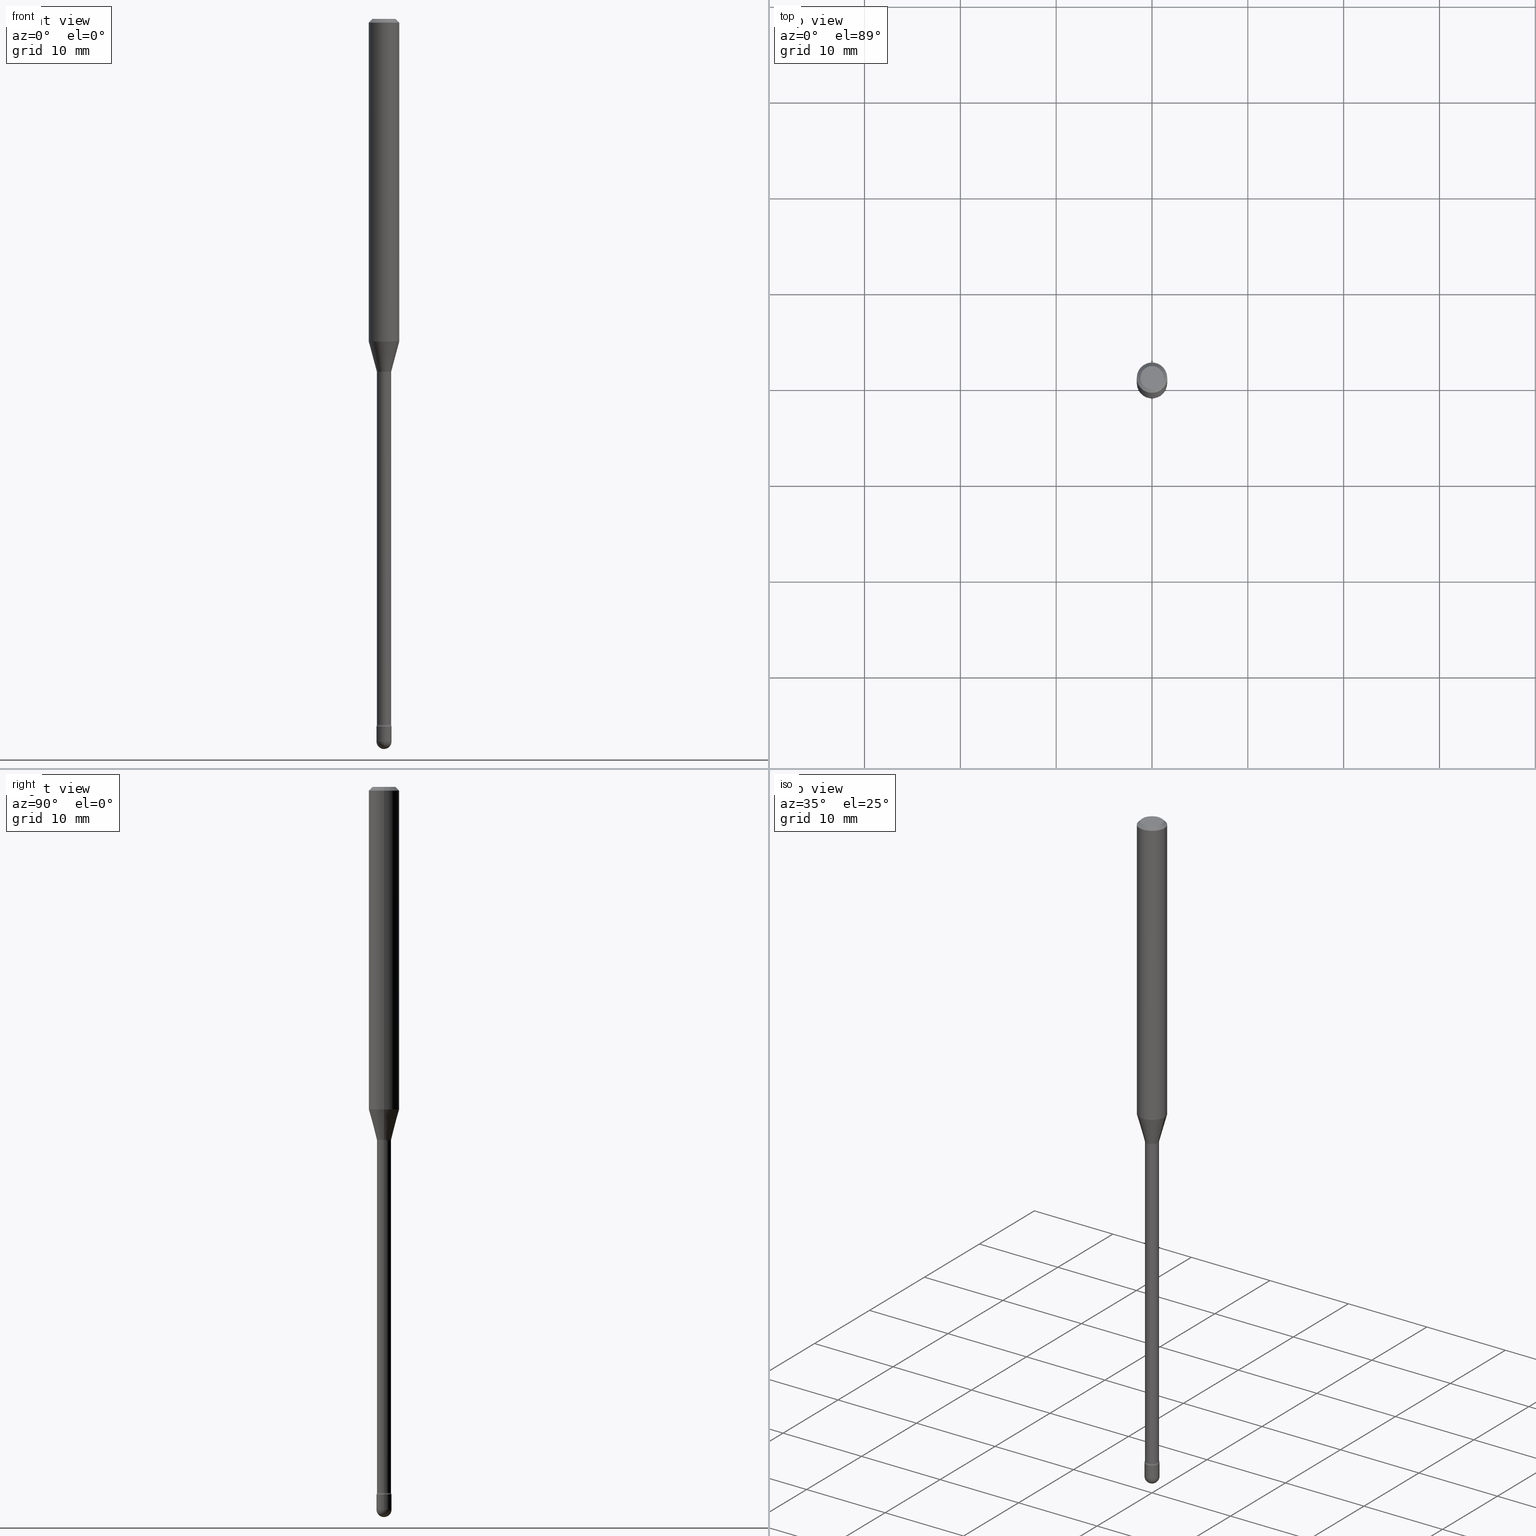
[diagram: canonical four-view strip — front | top / right | iso, engineering-drawing reading convention]
A machine part, canonical four-view strip (front | top / right | iso — engineering-drawing reading convention). The complete STEP part file that produces these views, byte-faithful:
ISO-10303-21;
HEADER;
FILE_DESCRIPTION (( 'STEP AP203' ),
    '1' );
FILE_NAME ('09500.STEP',
    '2024-04-09T23:55:29',
    ( '' ),
    ( '' ),
    'SwSTEP 2.0',
    'SolidWorks 2023',
    '' );
FILE_SCHEMA (( 'CONFIG_CONTROL_DESIGN' ));
ENDSEC;

DATA;
#1 = LINE ( 'NONE', #16, #440 ) ;
#2 = CARTESIAN_POINT ( 'NONE',  ( 2.023552857353652888E-45, -2.889097183224559242E-31, -8.274703207154537794E-17 ) ) ;
#3 = EDGE_LOOP ( 'NONE', ( #71, #497, #276, #362 ) ) ;
#4 = ORIENTED_EDGE ( 'NONE', *, *, #175, .F. ) ;
#5 = DIRECTION ( 'NONE',  ( -2.445468806185136877E-29, 3.491481338843145188E-15, 1.000000000000000000 ) ) ;
#6 = DIRECTION ( 'NONE',  ( 1.000000000000000000, -6.982962677686265922E-15, 4.876176775795935793E-29 ) ) ;
#7 = CARTESIAN_POINT ( 'NONE',  ( 3.550759050110043662E-29, -5.069542874900639233E-15, -1.451974787463811145 ) ) ;
#8 = ORIENTED_EDGE ( 'NONE', *, *, #76, .T. ) ;
#9 = CYLINDRICAL_SURFACE ( 'NONE', #332, 0.06250000000000000000 ) ;
#10 = CIRCLE ( 'NONE', #565, 0.02915000000000016883 ) ;
#11 = AXIS2_PLACEMENT_3D ( 'NONE', #434, #344, #302 ) ;
#12 = CC_DESIGN_PERSON_AND_ORGANIZATION_ASSIGNMENT ( #363, #406, ( #183 ) ) ;
#13 = DIRECTION ( 'NONE',  ( -2.445468806185136877E-29, 3.491481338843145188E-15, 1.000000000000000000 ) ) ;
#14 = COORDINATED_UNIVERSAL_TIME_OFFSET ( 5, 0, .BEHIND. ) ;
#15 = ORIENTED_EDGE ( 'NONE', *, *, #226, .F. ) ;
#16 = CARTESIAN_POINT ( 'NONE',  ( -0.06250000000000000000, 3.840629472727441958E-16, -0.01500000000000008271 ) ) ;
#17 = PERSON_AND_ORGANIZATION ( #322, #275 ) ;
#18 = EDGE_CURVE ( 'NONE', #255, #422, #533, .T. ) ;
#19 = AXIS2_PLACEMENT_3D ( 'NONE', #160, #119, #461 ) ;
#20 = ADVANCED_FACE ( 'NONE', ( #253 ), #439, .T. ) ;
#21 = ORIENTED_EDGE ( 'NONE', *, *, #524, .T. ) ;
#22 = LOCAL_TIME ( 19, 55, 29.00000000000000000, #247 ) ;
#23 = AXIS2_PLACEMENT_3D ( 'NONE', #428, #555, #88 ) ;
#24 = DIRECTION ( 'NONE',  ( -1.000000000000000000, 6.982962677686266711E-15, 0.000000000000000000 ) ) ;
#25 = DIRECTION ( 'NONE',  ( 2.445468806185136597E-29, -3.491481338843145583E-15, -1.000000000000000000 ) ) ;
#26 = ORIENTED_EDGE ( 'NONE', *, *, #523, .F. ) ;
#27 = DATE_AND_TIME ( #498, #130 ) ;
#28 = FACE_OUTER_BOUND ( 'NONE', #489, .T. ) ;
#29 = AXIS2_PLACEMENT_3D ( 'NONE', #287, #447, #185 ) ;
#30 = DIRECTION ( 'NONE',  ( -2.445468806185136877E-29, 3.491481338843145188E-15, 1.000000000000000000 ) ) ;
#31 = AXIS2_PLACEMENT_3D ( 'NONE', #429, #475, #337 ) ;
#32 = ADVANCED_FACE ( 'NONE', ( #546 ), #126, .F. ) ;
#33 = CARTESIAN_POINT ( 'NONE',  ( 0.06250000000000000000, -4.888073874380391431E-16, -0.01500000000000008271 ) ) ;
#34 = DIRECTION ( 'NONE',  ( 7.105427357601001859E-15, 1.000000000000000000, -3.491481338843145583E-15 ) ) ;
#35 = DIRECTION ( 'NONE',  ( -6.982962677686266711E-15, -1.000000000000000000, 3.491481338843145583E-15 ) ) ;
#36 = EDGE_LOOP ( 'NONE', ( #59, #241, #95, #352 ) ) ;
#37 = CC_DESIGN_DATE_AND_TIME_ASSIGNMENT ( #251, #360, ( #443 ) ) ;
#38 = CARTESIAN_POINT ( 'NONE',  ( 3.241557197637640788E-29, -4.628084576552016011E-15, -1.325536105567578060 ) ) ;
#39 = AXIS2_PLACEMENT_3D ( 'NONE', #394, #181, #6 ) ;
#40 = ADVANCED_BREP_SHAPE_REPRESENTATION ( '09500', ( #258, #278, #346 ), #536 ) ;
#41 = ADVANCED_FACE ( 'NONE', ( #261 ), #465, .T. ) ;
#42 = CARTESIAN_POINT ( 'NONE',  ( 0.02915000000000016883, -1.032809342904083303E-14, -2.899783525791635341 ) ) ;
#43 = VERTEX_POINT ( 'NONE', #33 ) ;
#44 = CARTESIAN_POINT ( 'NONE',  ( -0.06250000000000000000, -4.183995366701953394E-15, -1.325536105567578060 ) ) ;
#45 = LINE ( 'NONE', #315, #206 ) ;
#46 = CARTESIAN_POINT ( 'NONE',  ( -0.06250000000000000000, 4.440892098500642925E-16, 4.780733988912429571E-16 ) ) ;
#47 = EDGE_CURVE ( 'NONE', #43, #104, #365, .T. ) ;
#48 = CIRCLE ( 'NONE', #259, 0.03099999999999999978 ) ;
#49 = CIRCLE ( 'NONE', #11, 0.06250000000000000000 ) ;
#50 = CARTESIAN_POINT ( 'NONE',  ( 7.260596885563671793E-29, -1.036620809502529998E-14, -2.969000000000000306 ) ) ;
#51 = DIRECTION ( 'NONE',  ( 2.438088387897960049E-29, -3.491481338843145188E-15, -1.000000000000000000 ) ) ;
#52 = APPLICATION_CONTEXT ( 'configuration controlled 3d designs of mechanical parts and assemblies' ) ;
#53 = ORIENTED_EDGE ( 'NONE', *, *, #131, .F. ) ;
#54 = ORIENTED_EDGE ( 'NONE', *, *, #300, .F. ) ;
#55 = DIRECTION ( 'NONE',  ( -2.445468806185136877E-29, 3.491481338843145188E-15, 1.000000000000000000 ) ) ;
#56 = LINE ( 'NONE', #317, #511 ) ;
#57 = DIRECTION ( 'NONE',  ( 1.000000000000000000, -6.982962677686259611E-15, 0.000000000000000000 ) ) ;
#58 = LINE ( 'NONE', #102, #94 ) ;
#59 = ORIENTED_EDGE ( 'NONE', *, *, #100, .F. ) ;
#60 = DIRECTION ( 'NONE',  ( -2.445468806185136597E-29, 3.491481338843145583E-15, 1.000000000000000000 ) ) ;
#61 = AXIS2_PLACEMENT_3D ( 'NONE', #105, #34, #262 ) ;
#62 = LOCAL_TIME ( 19, 55, 29.00000000000000000, #520 ) ;
#63 = CALENDAR_DATE ( 2024, 9, 4 ) ;
#64 = ORIENTED_EDGE ( 'NONE', *, *, #463, .F. ) ;
#65 = DATE_AND_TIME ( #309, #62 ) ;
#66 = EDGE_CURVE ( 'NONE', #410, #267, #48, .T. ) ;
#67 = EDGE_LOOP ( 'NONE', ( #386, #156, #442, #286 ) ) ;
#68 = DATE_AND_TIME ( #288, #143 ) ;
#69 = ADVANCED_FACE ( 'NONE', ( #564 ), #93, .F. ) ;
#70 = AXIS2_PLACEMENT_3D ( 'NONE', #319, #400, #293 ) ;
#71 = ORIENTED_EDGE ( 'NONE', *, *, #433, .T. ) ;
#72 = VECTOR ( 'NONE', #379, 39.37007874015748143 ) ;
#73 = EDGE_CURVE ( 'NONE', #361, #393, #557, .T. ) ;
#74 = APPROVAL_STATUS ( 'not_yet_approved' ) ;
#75 = FACE_OUTER_BOUND ( 'NONE', #228, .T. ) ;
#76 = EDGE_CURVE ( 'NONE', #186, #104, #1, .T. ) ;
#77 = CARTESIAN_POINT ( 'NONE',  ( 7.260596885563671793E-29, -1.036620809502529998E-14, -2.969000000000000306 ) ) ;
#78 = CC_DESIGN_PERSON_AND_ORGANIZATION_ASSIGNMENT ( #17, #535, ( #183 ) ) ;
#79 = DIRECTION ( 'NONE',  ( 1.000000000000000000, -6.982962677686266711E-15, 4.852736867747366207E-29 ) ) ;
#80 = AXIS2_PLACEMENT_3D ( 'NONE', #417, #508, #24 ) ;
#81 = CARTESIAN_POINT ( 'NONE',  ( 0.02914999999999999883, -5.273096236955193649E-15, -1.451974787463811145 ) ) ;
#82 = VECTOR ( 'NONE', #338, 39.37007874015748143 ) ;
#83 = DIRECTION ( 'NONE',  ( -2.445468806185136597E-29, 3.491481338843145583E-15, 1.000000000000000000 ) ) ;
#84 = CARTESIAN_POINT ( 'NONE',  ( 0.04415000000000018215, -1.043283786920612640E-14, -2.899783525791635341 ) ) ;
#85 = ADVANCED_FACE ( 'NONE', ( #236 ), #549, .T. ) ;
#86 = CARTESIAN_POINT ( 'NONE',  ( 0.03099999999999999978, -1.047444401652943635E-14, -2.969000000000000306 ) ) ;
#87 = DIRECTION ( 'NONE',  ( -2.445468806185136597E-29, 3.491481338843145583E-15, 1.000000000000000000 ) ) ;
#88 = DIRECTION ( 'NONE',  ( 1.000000000000000000, -6.982962677686268288E-15, 0.000000000000000000 ) ) ;
#89 = VERTEX_POINT ( 'NONE', #538 ) ;
#90 = EDGE_LOOP ( 'NONE', ( #548, #118, #407, #4 ) ) ;
#91 = ORIENTED_EDGE ( 'NONE', *, *, #463, .T. ) ;
#92 = CARTESIAN_POINT ( 'NONE',  ( -0.03099999999999999978, 2.202682480856310560E-16, -1.524869877979020612E-30 ) ) ;
#93 = TOROIDAL_SURFACE ( 'NONE', #29, 0.04415000000000018215, 0.01500000000000000812 ) ;
#94 = VECTOR ( 'NONE', #55, 39.37007874015748143 ) ;
#95 = ORIENTED_EDGE ( 'NONE', *, *, #502, .T. ) ;
#96 = VERTEX_POINT ( 'NONE', #347 ) ;
#97 = CARTESIAN_POINT ( 'NONE',  ( 0.02966111260566398414, -5.263110389212949898E-15, -1.448092501787273223 ) ) ;
#98 = EDGE_LOOP ( 'NONE', ( #354, #280, #496, #155, #53 ) ) ;
#99 = DIRECTION ( 'NONE',  ( 1.000000000000000000, -6.982962677686267499E-15, 4.884662768193073002E-29 ) ) ;
#100 = EDGE_CURVE ( 'NONE', #89, #115, #45, .T. ) ;
#101 = ORIENTED_EDGE ( 'NONE', *, *, #73, .T. ) ;
#102 = CARTESIAN_POINT ( 'NONE',  ( 0.02915000000000008210, -2.035533620545535777E-16, 4.780733988912474930E-16 ) ) ;
#103 = EDGE_LOOP ( 'NONE', ( #189, #367, #326, #328 ) ) ;
#104 = VERTEX_POINT ( 'NONE', #227 ) ;
#105 = CARTESIAN_POINT ( 'NONE',  ( -0.04415000000000018215, -9.810835449148191858E-15, -2.899783525791635341 ) ) ;
#106 = EDGE_CURVE ( 'NONE', #96, #115, #221, .T. ) ;
#107 = CARTESIAN_POINT ( 'NONE',  ( 3.316907271900976096E-16, 0.04749999999999999362, 3.181781981480094004E-17 ) ) ;
#108 = ORIENTED_EDGE ( 'NONE', *, *, #383, .T. ) ;
#109 = FACE_OUTER_BOUND ( 'NONE', #485, .T. ) ;
#110 = APPROVAL_ROLE ( '' ) ;
#111 = ORIENTED_EDGE ( 'NONE', *, *, #457, .F. ) ;
#112 = AXIS2_PLACEMENT_3D ( 'NONE', #219, #517, #271 ) ;
#113 = EDGE_CURVE ( 'NONE', #469, #410, #512, .T. ) ;
#114 = EDGE_LOOP ( 'NONE', ( #532, #157, #101, #492 ) ) ;
#115 = VERTEX_POINT ( 'NONE', #334 ) ;
#116 = APPROVAL_DATE_TIME ( #65, #202 ) ;
#117 = ADVANCED_FACE ( 'NONE', ( #378 ), #161, .F. ) ;
#118 = ORIENTED_EDGE ( 'NONE', *, *, #113, .T. ) ;
#119 = DIRECTION ( 'NONE',  ( -2.438088387897960049E-29, 3.491481338843145188E-15, 1.000000000000000000 ) ) ;
#120 = AXIS2_PLACEMENT_3D ( 'NONE', #427, #256, #264 ) ;
#121 = SPHERICAL_SURFACE ( 'NONE', #170, 0.03099999999999987488 ) ;
#122 = DIRECTION ( 'NONE',  ( 1.000000000000000000, -6.982962677686268288E-15, 0.000000000000000000 ) ) ;
#123 = DIRECTION ( 'NONE',  ( 1.000000000000000000, -6.982962677686261977E-15, 4.883557194083111219E-29 ) ) ;
#124 = DIRECTION ( 'NONE',  ( -2.445468806185136597E-29, 3.491481338843145583E-15, 1.000000000000000000 ) ) ;
#125 = DIRECTION ( 'NONE',  ( -2.445468806185136597E-29, 3.491481338843145583E-15, 1.000000000000000000 ) ) ;
#126 = TOROIDAL_SURFACE ( 'NONE', #355, 0.04415000000000018215, 0.01500000000000000812 ) ;
#127 = AXIS2_PLACEMENT_3D ( 'NONE', #507, #543, #167 ) ;
#128 = DIRECTION ( 'NONE',  ( -2.445468806185136597E-29, 3.491481338843145583E-15, 1.000000000000000000 ) ) ;
#129 = DIRECTION ( 'NONE',  ( 6.982962677686265922E-15, 1.000000000000000000, 0.000000000000000000 ) ) ;
#130 = LOCAL_TIME ( 19, 55, 29.00000000000000000, #245 ) ;
#131 = EDGE_CURVE ( 'NONE', #296, #537, #401, .T. ) ;
#132 = ORIENTED_EDGE ( 'NONE', *, *, #18, .F. ) ;
#133 = DIRECTION ( 'NONE',  ( -0.2588190451025207950, 5.211531920934546309E-15, 0.9659258262890682012 ) ) ;
#134 = LINE ( 'NONE', #303, #82 ) ;
#135 = AXIS2_PLACEMENT_3D ( 'NONE', #194, #124, #358 ) ;
#136 = VECTOR ( 'NONE', #30, 39.37007874015748143 ) ;
#137 = EDGE_CURVE ( 'NONE', #115, #393, #142, .T. ) ;
#138 = DIRECTION ( 'NONE',  ( -2.445468806185136597E-29, 3.491481338843145583E-15, 1.000000000000000000 ) ) ;
#139 = CARTESIAN_POINT ( 'NONE',  ( -0.04415000000000000174, -4.755838257062554840E-15, -1.451974787463811145 ) ) ;
#140 = APPLICATION_PROTOCOL_DEFINITION ( 'international standard', 'config_control_design', 1994, #308 ) ;
#141 = DIRECTION ( 'NONE',  ( -1.000000000000000000, 6.982962677686265922E-15, -4.876176775795935793E-29 ) ) ;
#142 = CIRCLE ( 'NONE', #374, 0.02914999999999999883 ) ;
#143 = LOCAL_TIME ( 19, 55, 29.00000000000000000, #14 ) ;
#144 = VERTEX_POINT ( 'NONE', #86 ) ;
#145 = LINE ( 'NONE', #211, #483 ) ;
#146 = DIRECTION ( 'NONE',  ( 0.000000000000000000, 0.000000000000000000, 1.000000000000000000 ) ) ;
#147 = ORIENTED_EDGE ( 'NONE', *, *, #66, .T. ) ;
#148 = DIRECTION ( 'NONE',  ( 1.000000000000000000, -6.982962677686267499E-15, 4.884662768193073002E-29 ) ) ;
#149 = ORIENTED_EDGE ( 'NONE', *, *, #382, .T. ) ;
#150 = APPROVAL_DATE_TIME ( #531, #187 ) ;
#151 = ORIENTED_EDGE ( 'NONE', *, *, #420, .F. ) ;
#152 = CIRCLE ( 'NONE', #432, 0.04749999999999999362 ) ;
#153 = AXIS2_PLACEMENT_3D ( 'NONE', #514, #125, #384 ) ;
#154 = DIRECTION ( 'NONE',  ( 6.982962677686265922E-15, 1.000000000000000000, 0.000000000000000000 ) ) ;
#155 = ORIENTED_EDGE ( 'NONE', *, *, #300, .T. ) ;
#156 = ORIENTED_EDGE ( 'NONE', *, *, #100, .T. ) ;
#157 = ORIENTED_EDGE ( 'NONE', *, *, #433, .F. ) ;
#158 = DIRECTION ( 'NONE',  ( -2.445468806185136597E-29, 3.491481338843145583E-15, 1.000000000000000000 ) ) ;
#159 = EDGE_CURVE ( 'NONE', #89, #426, #10, .T. ) ;
#160 = CARTESIAN_POINT ( 'NONE',  ( 2.164718430083453286E-16, 0.03099999999998984818, -2.907000000000000473 ) ) ;
#161 = TOROIDAL_SURFACE ( 'NONE', #204, 0.04415000000000000174, 0.01500000000000002373 ) ;
#162 = APPROVAL_ROLE ( '' ) ;
#163 = DIRECTION ( 'NONE',  ( -2.445468806185136597E-29, 3.491481338843145583E-15, 1.000000000000000000 ) ) ;
#164 = DIRECTION ( 'NONE',  ( 1.000000000000000000, -6.982962677686238312E-15, 0.000000000000000000 ) ) ;
#165 = DIRECTION ( 'NONE',  ( -2.445468806185136597E-29, 3.491481338843145583E-15, 1.000000000000000000 ) ) ;
#166 = EDGE_CURVE ( 'NONE', #361, #453, #56, .T. ) ;
#167 = DIRECTION ( 'NONE',  ( 1.000000000000000000, -6.982962677686266711E-15, 4.876176775795935232E-29 ) ) ;
#168 = ORIENTED_EDGE ( 'NONE', *, *, #411, .T. ) ;
#169 = DIRECTION ( 'NONE',  ( 1.000000000000000000, -6.982962677686238312E-15, 0.000000000000000000 ) ) ;
#170 = AXIS2_PLACEMENT_3D ( 'NONE', #77, #353, #405 ) ;
#171 = EDGE_CURVE ( 'NONE', #453, #521, #314, .T. ) ;
#172 = CARTESIAN_POINT ( 'NONE',  ( 7.260596885563671793E-29, -1.036620809502529998E-14, -2.969000000000000306 ) ) ;
#173 = ADVANCED_FACE ( 'NONE', ( #295 ), #542, .F. ) ;
#174 = ORIENTED_EDGE ( 'NONE', *, *, #383, .F. ) ;
#175 = EDGE_CURVE ( 'NONE', #404, #144, #339, .T. ) ;
#176 = SPHERICAL_SURFACE ( 'NONE', #455, 0.03099999999999987488 ) ;
#177 = EDGE_LOOP ( 'NONE', ( #445, #212, #246, #203 ) ) ;
#178 = ORIENTED_EDGE ( 'NONE', *, *, #131, .T. ) ;
#179 = CYLINDRICAL_SURFACE ( 'NONE', #232, 0.02915000000000008210 ) ;
#180 = CLOSED_SHELL ( 'NONE', ( #85, #289, #494, #390, #41 ) ) ;
#181 = DIRECTION ( 'NONE',  ( -2.438088387897960049E-29, 3.491481338843145188E-15, 1.000000000000000000 ) ) ;
#182 = CONICAL_SURFACE ( 'NONE', #534, 0.02966111260566398414, 0.2617993877991495189 ) ;
#183 = PRODUCT_DEFINITION_FORMATION_WITH_SPECIFIED_SOURCE ( 'ANY', '', #413, .NOT_KNOWN. ) ;
#184 = VERTEX_POINT ( 'NONE', #331 ) ;
#185 = DIRECTION ( 'NONE',  ( 1.000000000000000000, -6.982962677686261977E-15, 4.883557194083111219E-29 ) ) ;
#186 = VERTEX_POINT ( 'NONE', #423 ) ;
#187 = APPROVAL ( #74, 'UNSPECIFIED' ) ;
#188 = DIRECTION ( 'NONE',  ( 1.000000000000000000, -6.982962677686267499E-15, 0.000000000000000000 ) ) ;
#189 = ORIENTED_EDGE ( 'NONE', *, *, #397, .F. ) ;
#190 = DIRECTION ( 'NONE',  ( 1.000000000000000000, -6.982962677686266711E-15, 4.786146996491814145E-29 ) ) ;
#191 = CARTESIAN_POINT ( 'NONE',  ( 0.03099999999999999978, -1.036620809502529840E-14, -2.907000000000000473 ) ) ;
#192 = AXIS2_PLACEMENT_3D ( 'NONE', #408, #83, #399 ) ;
#193 = CIRCLE ( 'NONE', #376, 0.02915000000000016883 ) ;
#194 = CARTESIAN_POINT ( 'NONE',  ( -1.169113584055446105E-44, 1.669184350826100908E-30, 4.780733988912460139E-16 ) ) ;
#195 = DIRECTION ( 'NONE',  ( -2.445468806185136877E-29, 3.491481338843145188E-15, 1.000000000000000000 ) ) ;
#196 = ADVANCED_FACE ( 'NONE', ( #464 ), #324, .T. ) ;
#197 = ORIENTED_EDGE ( 'NONE', *, *, #356, .F. ) ;
#198 = CARTESIAN_POINT ( 'NONE',  ( 7.260596885563671793E-29, -1.036620809502529998E-14, -2.969000000000000306 ) ) ;
#199 = PERSON_AND_ORGANIZATION ( #322, #275 ) ;
#200 = ADVANCED_FACE ( 'NONE', ( #28 ), #9, .T. ) ;
#201 = EDGE_LOOP ( 'NONE', ( #15, #149, #250, #530 ) ) ;
#202 = APPROVAL ( #239, 'UNSPECIFIED' ) ;
#203 = ORIENTED_EDGE ( 'NONE', *, *, #73, .F. ) ;
#204 = AXIS2_PLACEMENT_3D ( 'NONE', #563, #368, #244 ) ;
#205 = EDGE_LOOP ( 'NONE', ( #436, #272, #527, #64 ) ) ;
#206 = VECTOR ( 'NONE', #5, 39.37007874015748143 ) ;
#207 = APPROVAL_PERSON_ORGANIZATION ( #209, #187, #162 ) ;
#208 = PERSON_AND_ORGANIZATION ( #322, #275 ) ;
#209 = PERSON_AND_ORGANIZATION ( #322, #275 ) ;
#210 = DIRECTION ( 'NONE',  ( -2.445468806185136597E-29, 3.491481338843145583E-15, 1.000000000000000000 ) ) ;
#211 = CARTESIAN_POINT ( 'NONE',  ( 0.03099999999999999978, -2.164718430082742572E-16, 1.511614800496739984E-30 ) ) ;
#212 = ORIENTED_EDGE ( 'NONE', *, *, #106, .T. ) ;
#213 = CIRCLE ( 'NONE', #316, 0.03099999999999999978 ) ;
#214 = CARTESIAN_POINT ( 'NONE',  ( 3.541265041591370920E-29, -5.055987946908948646E-15, -1.448092501787273223 ) ) ;
#215 = CARTESIAN_POINT ( 'NONE',  ( 3.668203209277725232E-31, -5.237222008264747365E-17, -0.01500000000000008271 ) ) ;
#216 = ADVANCED_FACE ( 'NONE', ( #75 ), #499, .T. ) ;
#217 = CARTESIAN_POINT ( 'NONE',  ( -1.169113584055446105E-44, 1.669184350826100908E-30, 4.780733988912460139E-16 ) ) ;
#218 = ADVANCED_FACE ( 'NONE', ( #528 ), #415, .T. ) ;
#219 = CARTESIAN_POINT ( 'NONE',  ( 7.108977819580192437E-29, -1.014973625201702565E-14, -2.907000000000000473 ) ) ;
#220 = EDGE_LOOP ( 'NONE', ( #458, #270, #8, #559 ) ) ;
#221 = CIRCLE ( 'NONE', #385, 0.01500000000000001853 ) ;
#222 = CIRCLE ( 'NONE', #518, 0.01500000000000001159 ) ;
#223 = DIRECTION ( 'NONE',  ( 1.000000000000000000, -6.982962677686266711E-15, 4.786146996491814145E-29 ) ) ;
#224 = DIRECTION ( 'NONE',  ( 1.000000000000000000, -6.982962677686266711E-15, 0.000000000000000000 ) ) ;
#225 = DIRECTION ( 'NONE',  ( -2.445468806185136597E-29, 3.491481338843145583E-15, 1.000000000000000000 ) ) ;
#226 = EDGE_CURVE ( 'NONE', #184, #186, #152, .T. ) ;
#227 = CARTESIAN_POINT ( 'NONE',  ( -0.06250000000000000000, -1.896139188467269126E-15, -0.01500000000000008271 ) ) ;
#228 = EDGE_LOOP ( 'NONE', ( #323, #395, #108, #151 ) ) ;
#229 =( LENGTH_UNIT ( ) NAMED_UNIT ( * ) SI_UNIT ( $, .METRE. ) );
#230 = EDGE_LOOP ( 'NONE', ( #147, #168, #197, #54, #357 ) ) ;
#231 = CARTESIAN_POINT ( 'NONE',  ( 7.337731926303638431E-29, -1.047254581399075986E-14, -3.000000000000000444 ) ) ;
#232 = AXIS2_PLACEMENT_3D ( 'NONE', #217, #305, #223 ) ;
#233 = AXIS2_PLACEMENT_3D ( 'NONE', #481, #138, #188 ) ;
#234 = FACE_OUTER_BOUND ( 'NONE', #479, .T. ) ;
#235 = ORIENTED_EDGE ( 'NONE', *, *, #171, .T. ) ;
#236 = FACE_OUTER_BOUND ( 'NONE', #230, .T. ) ;
#237 = CARTESIAN_POINT ( 'NONE',  ( 7.091330157012996876E-29, -1.012454006698627704E-14, -2.899783525791635341 ) ) ;
#238 = CARTESIAN_POINT ( 'NONE',  ( 7.091330157012996876E-29, -1.012454006698627704E-14, -2.899783525791635341 ) ) ;
#239 = APPROVAL_STATUS ( 'not_yet_approved' ) ;
#240 = AXIS2_PLACEMENT_3D ( 'NONE', #418, #25, #547 ) ;
#241 = ORIENTED_EDGE ( 'NONE', *, *, #159, .T. ) ;
#242 = DIRECTION ( 'NONE',  ( -2.445468806185136597E-29, 3.491481338843145583E-15, 1.000000000000000000 ) ) ;
#243 = CALENDAR_DATE ( 2024, 9, 4 ) ;
#244 = DIRECTION ( 'NONE',  ( 1.000000000000000000, -6.982962677686265922E-15, 4.883557194083112340E-29 ) ) ;
#245 = COORDINATED_UNIVERSAL_TIME_OFFSET ( 5, 0, .BEHIND. ) ;
#246 = ORIENTED_EDGE ( 'NONE', *, *, #137, .T. ) ;
#247 = COORDINATED_UNIVERSAL_TIME_OFFSET ( 5, 0, .BEHIND. ) ;
#248 = CIRCLE ( 'NONE', #61, 0.01500000000000001159 ) ;
#249 = CIRCLE ( 'NONE', #505, 0.06250000000000000000 ) ;
#250 = ORIENTED_EDGE ( 'NONE', *, *, #47, .T. ) ;
#251 = DATE_AND_TIME ( #243, #416 ) ;
#252 = CARTESIAN_POINT ( 'NONE',  ( -1.169113584055446105E-44, 1.669184350826100908E-30, 4.780733988912460139E-16 ) ) ;
#253 = FACE_OUTER_BOUND ( 'NONE', #220, .T. ) ;
#254 = CARTESIAN_POINT ( 'NONE',  ( -0.03099999999999999978, -1.003770392543552998E-14, -2.907000000000000473 ) ) ;
#255 = VERTEX_POINT ( 'NONE', #257 ) ;
#256 = DIRECTION ( 'NONE',  ( -2.445468806185136597E-29, 3.491481338843145583E-15, 1.000000000000000000 ) ) ;
#257 = CARTESIAN_POINT ( 'NONE',  ( -0.03100000000000000672, -9.929468003931393603E-15, -2.907000000000000473 ) ) ;
#258 = MANIFOLD_SOLID_BREP ( 'Body-Move/Copy2[1]', #180 ) ;
#259 = AXIS2_PLACEMENT_3D ( 'NONE', #472, #87, #430 ) ;
#260 = CC_DESIGN_APPROVAL ( #437, ( #183 ) ) ;
#261 = FACE_OUTER_BOUND ( 'NONE', #98, .T. ) ;
#262 = DIRECTION ( 'NONE',  ( -1.000000000000000000, 7.105427357600985293E-15, 0.000000000000000000 ) ) ;
#263 = EDGE_CURVE ( 'NONE', #144, #410, #476, .T. ) ;
#264 = DIRECTION ( 'NONE',  ( 1.000000000000000000, -6.982962677686266711E-15, 4.876176775795935232E-29 ) ) ;
#265 = LINE ( 'NONE', #510, #136 ) ;
#266 = DIRECTION ( 'NONE',  ( -2.445468806185136597E-29, 3.491481338843145583E-15, 1.000000000000000000 ) ) ;
#267 = VERTEX_POINT ( 'NONE', #525 ) ;
#268 = CIRCLE ( 'NONE', #31, 0.03099999999999987488 ) ;
#269 = FACE_OUTER_BOUND ( 'NONE', #90, .T. ) ;
#270 = ORIENTED_EDGE ( 'NONE', *, *, #550, .F. ) ;
#271 = DIRECTION ( 'NONE',  ( 1.000000000000000000, -6.982962677686238312E-15, 0.000000000000000000 ) ) ;
#272 = ORIENTED_EDGE ( 'NONE', *, *, #336, .T. ) ;
#273 = AXIS2_PLACEMENT_3D ( 'NONE', #372, #242, #329 ) ;
#274 =( NAMED_UNIT ( * ) PLANE_ANGLE_UNIT ( ) SI_UNIT ( $, .RADIAN. ) );
#275 = ORGANIZATION ( 'UNSPECIFIED', 'UNSPECIFIED', '' ) ;
#276 = ORIENTED_EDGE ( 'NONE', *, *, #171, .F. ) ;
#277 = DIRECTION ( 'NONE',  ( -0.7071067811865475727, 2.468850131082257455E-15, -0.7071067811865474617 ) ) ;
#278 = MANIFOLD_SOLID_BREP ( 'Body-Move/Copy2[2]', #313 ) ;
#279 = MECHANICAL_CONTEXT ( 'NONE', #308, 'mechanical' ) ;
#280 = ORIENTED_EDGE ( 'NONE', *, *, #312, .T. ) ;
#281 = FACE_OUTER_BOUND ( 'NONE', #67, .T. ) ;
#282 = APPLICATION_PROTOCOL_DEFINITION ( 'international standard', 'config_control_design', 1994, #52 ) ;
#283 = CARTESIAN_POINT ( 'NONE',  ( 3.541265041591370920E-29, -5.055987946908948646E-15, -1.448092501787273223 ) ) ;
#284 = CC_DESIGN_PERSON_AND_ORGANIZATION_ASSIGNMENT ( #321, #348, ( #413 ) ) ;
#285 = AXIS2_PLACEMENT_3D ( 'NONE', #50, #487, #154 ) ;
#286 = ORIENTED_EDGE ( 'NONE', *, *, #502, .F. ) ;
#287 = CARTESIAN_POINT ( 'NONE',  ( 7.091330157012996876E-29, -1.012454006698627704E-14, -2.899783525791635341 ) ) ;
#288 = CALENDAR_DATE ( 2024, 9, 4 ) ;
#289 = ADVANCED_FACE ( 'NONE', ( #109 ), #121, .T. ) ;
#290 = DIRECTION ( 'NONE',  ( 0.2588190451025207950, 1.565188264969625912E-15, 0.9659258262890682012 ) ) ;
#291 = AXIS2_PLACEMENT_3D ( 'NONE', #451, #456, #57 ) ;
#292 = DIRECTION ( 'NONE',  ( 1.000000000000000000, -6.982962677686238312E-15, 0.000000000000000000 ) ) ;
#293 = DIRECTION ( 'NONE',  ( 1.000000000000000000, -6.982962677686238312E-15, 0.000000000000000000 ) ) ;
#294 = ORIENTED_EDGE ( 'NONE', *, *, #226, .T. ) ;
#295 = FACE_OUTER_BOUND ( 'NONE', #449, .T. ) ;
#296 = VERTEX_POINT ( 'NONE', #254 ) ;
#297 = ADVANCED_FACE ( 'NONE', ( #281 ), #421, .T. ) ;
#298 = CARTESIAN_POINT ( 'NONE',  ( 7.108977819580192437E-29, -1.014973625201702565E-14, -2.907000000000000473 ) ) ;
#299 = APPROVAL_PERSON_ORGANIZATION ( #491, #202, #110 ) ;
#300 = EDGE_CURVE ( 'NONE', #144, #537, #145, .T. ) ;
#301 = CARTESIAN_POINT ( 'NONE',  ( 7.091330157012996876E-29, -1.012454006698627704E-14, -2.899783525791635341 ) ) ;
#302 = DIRECTION ( 'NONE',  ( 1.000000000000000000, -6.982962677686266711E-15, 0.000000000000000000 ) ) ;
#303 = CARTESIAN_POINT ( 'NONE',  ( 0.06250000000000000000, -4.811533449433681963E-16, -0.01500000000000008271 ) ) ;
#304 = ORIENTED_EDGE ( 'NONE', *, *, #66, .F. ) ;
#305 = DIRECTION ( 'NONE',  ( -2.445468806185136597E-29, 3.491481338843145583E-15, 1.000000000000000000 ) ) ;
#306 = AXIS2_PLACEMENT_3D ( 'NONE', #466, #60, #190 ) ;
#307 = DIRECTION ( 'NONE',  ( 1.000000000000000000, -6.982962677686267499E-15, 0.000000000000000000 ) ) ;
#308 = APPLICATION_CONTEXT ( 'configuration controlled 3d designs of mechanical parts and assemblies' ) ;
#309 = CALENDAR_DATE ( 2024, 9, 4 ) ;
#310 = DIRECTION ( 'NONE',  ( 7.105427357601001859E-15, 1.000000000000000000, -3.491481338843145583E-15 ) ) ;
#311 = DIRECTION ( 'NONE',  ( 1.000000000000000000, -6.982962677686262766E-15, 0.000000000000000000 ) ) ;
#312 = EDGE_CURVE ( 'NONE', #267, #404, #545, .T. ) ;
#313 = CLOSED_SHELL ( 'NONE', ( #375, #297, #69, #218, #200, #196, #369, #216, #20, #526, #173, #32, #342, #117 ) ) ;
#314 = CIRCLE ( 'NONE', #273, 0.06250000000000000000 ) ;
#315 = CARTESIAN_POINT ( 'NONE',  ( -0.02915000000000008210, 2.071232074740714638E-16, 4.780733988912446334E-16 ) ) ;
#316 = AXIS2_PLACEMENT_3D ( 'NONE', #298, #467, #169 ) ;
#317 = CARTESIAN_POINT ( 'NONE',  ( 0.02966111260566398414, -5.263110389212949898E-15, -1.448092501787273223 ) ) ;
#318 = ORIENTED_EDGE ( 'NONE', *, *, #336, .F. ) ;
#319 = CARTESIAN_POINT ( 'NONE',  ( 7.260596885563671793E-29, -1.036620809502529998E-14, -2.969000000000000306 ) ) ;
#320 = CC_DESIGN_PERSON_AND_ORGANIZATION_ASSIGNMENT ( #208, #419, ( #540 ) ) ;
#321 = PERSON_AND_ORGANIZATION ( #322, #275 ) ;
#322 = PERSON ( 'UNSPECIFIED', 'UNSPECIFIED', 'UNSPECIFIED', ('UNSPECIFIED'), ('UNSPECIFIED'), ('UNSPECIFIED') ) ;
#323 = ORIENTED_EDGE ( 'NONE', *, *, #524, .F. ) ;
#324 = CONICAL_SURFACE ( 'NONE', #460, 0.02966111260566398414, 0.2617993877991495189 ) ;
#325 = CIRCLE ( 'NONE', #233, 0.02966111260566398414 ) ;
#326 = ORIENTED_EDGE ( 'NONE', *, *, #166, .T. ) ;
#327 = APPROVAL_DATE_TIME ( #27, #437 ) ;
#328 = ORIENTED_EDGE ( 'NONE', *, *, #446, .F. ) ;
#329 = DIRECTION ( 'NONE',  ( 1.000000000000000000, -6.982962677686262766E-15, 0.000000000000000000 ) ) ;
#330 = SECURITY_CLASSIFICATION_LEVEL ( 'unclassified' ) ;
#331 = CARTESIAN_POINT ( 'NONE',  ( 0.04749999999999999362, -4.035134999187581581E-16, -8.274703207154280181E-17 ) ) ;
#332 = AXIS2_PLACEMENT_3D ( 'NONE', #252, #335, #79 ) ;
#333 = CIRCLE ( 'NONE', #387, 0.02966111260566398414 ) ;
#334 = CARTESIAN_POINT ( 'NONE',  ( -0.02914999999999999883, -7.389918263469384527E-15, -1.451974787463811145 ) ) ;
#335 = DIRECTION ( 'NONE',  ( -2.445468806185136597E-29, 3.491481338843145583E-15, 1.000000000000000000 ) ) ;
#336 = EDGE_CURVE ( 'NONE', #89, #255, #248, .T. ) ;
#337 = DIRECTION ( 'NONE',  ( -7.105427357601001070E-15, -1.000000000000000000, 0.000000000000000000 ) ) ;
#338 = DIRECTION ( 'NONE',  ( 0.7071067811865475727, -7.319954787623256045E-15, -0.7071067811865474617 ) ) ;
#339 = CIRCLE ( 'NONE', #70, 0.03099999999999999978 ) ;
#340 = CC_DESIGN_APPROVAL ( #187, ( #443 ) ) ;
#341 = FACE_OUTER_BOUND ( 'NONE', #177, .T. ) ;
#342 = ADVANCED_FACE ( 'NONE', ( #388 ), #179, .T. ) ;
#343 = CARTESIAN_POINT ( 'NONE',  ( -0.02966111260566398414, -4.845233065943779269E-15, -1.448092501787273223 ) ) ;
#344 = DIRECTION ( 'NONE',  ( -2.445468806185136597E-29, 3.491481338843145583E-15, 1.000000000000000000 ) ) ;
#345 = CIRCLE ( 'NONE', #112, 0.03099999999999999978 ) ;
#346 = AXIS2_PLACEMENT_3D ( 'NONE', #448, #146, #452 ) ;
#347 = CARTESIAN_POINT ( 'NONE',  ( -0.02966111260566398414, -4.514614216322867121E-15, -1.448092501787273223 ) ) ;
#348 = PERSON_AND_ORGANIZATION_ROLE ( 'design_owner' ) ;
#349 = ORIENTED_EDGE ( 'NONE', *, *, #457, .T. ) ;
#350 = ORIENTED_EDGE ( 'NONE', *, *, #113, .F. ) ;
#351 = FACE_OUTER_BOUND ( 'NONE', #561, .T. ) ;
#352 = ORIENTED_EDGE ( 'NONE', *, *, #137, .F. ) ;
#353 = DIRECTION ( 'NONE',  ( -1.000000000000000000, 6.982962677686265922E-15, -4.883557194083112901E-29 ) ) ;
#354 = ORIENTED_EDGE ( 'NONE', *, *, #411, .F. ) ;
#355 = AXIS2_PLACEMENT_3D ( 'NONE', #301, #163, #123 ) ;
#356 = EDGE_CURVE ( 'NONE', #537, #296, #345, .T. ) ;
#357 = ORIENTED_EDGE ( 'NONE', *, *, #263, .T. ) ;
#358 = DIRECTION ( 'NONE',  ( 1.000000000000000000, -6.982962677686266711E-15, 4.852736867747366207E-29 ) ) ;
#359 = DIRECTION ( 'NONE',  ( -2.445468806185136597E-29, 3.491481338843145583E-15, 1.000000000000000000 ) ) ;
#360 = DATE_TIME_ROLE ( 'classification_date' ) ;
#361 = VERTEX_POINT ( 'NONE', #97 ) ;
#362 = ORIENTED_EDGE ( 'NONE', *, *, #166, .F. ) ;
#363 = PERSON_AND_ORGANIZATION ( #322, #275 ) ;
#364 = AXIS2_PLACEMENT_3D ( 'NONE', #377, #128, #292 ) ;
#365 = CIRCLE ( 'NONE', #493, 0.06250000000000000000 ) ;
#366 = AXIS2_PLACEMENT_3D ( 'NONE', #107, #51, #141 ) ;
#367 = ORIENTED_EDGE ( 'NONE', *, *, #560, .T. ) ;
#368 = DIRECTION ( 'NONE',  ( -2.445468806185136597E-29, 3.491481338843145583E-15, 1.000000000000000000 ) ) ;
#369 = ADVANCED_FACE ( 'NONE', ( #380 ), #182, .T. ) ;
#370 = APPROVAL_STATUS ( 'not_yet_approved' ) ;
#371 = PRODUCT_DEFINITION_SHAPE ( 'NONE', 'NONE',  #540 ) ;
#372 = CARTESIAN_POINT ( 'NONE',  ( 3.241557197637640788E-29, -4.628084576552016011E-15, -1.325536105567578060 ) ) ;
#373 = DIRECTION ( 'NONE',  ( 1.000000000000000000, -6.982962677686267499E-15, 0.000000000000000000 ) ) ;
#374 = AXIS2_PLACEMENT_3D ( 'NONE', #7, #435, #122 ) ;
#375 = ADVANCED_FACE ( 'NONE', ( #341 ), #424, .F. ) ;
#376 = AXIS2_PLACEMENT_3D ( 'NONE', #237, #522, #398 ) ;
#377 = CARTESIAN_POINT ( 'NONE',  ( 7.108977819580192437E-29, -1.014973625201702565E-14, -2.907000000000000473 ) ) ;
#378 = FACE_OUTER_BOUND ( 'NONE', #114, .T. ) ;
#379 = DIRECTION ( 'NONE',  ( -2.445468806185136877E-29, 3.491481338843145188E-15, 1.000000000000000000 ) ) ;
#380 = FACE_OUTER_BOUND ( 'NONE', #103, .T. ) ;
#381 = DIMENSIONAL_EXPONENTS ( 1.000000000000000000, 0.000000000000000000, 0.000000000000000000, 0.000000000000000000, 0.000000000000000000, 0.000000000000000000, 0.000000000000000000 ) ;
#382 = EDGE_CURVE ( 'NONE', #184, #43, #134, .T. ) ;
#383 = EDGE_CURVE ( 'NONE', #453, #43, #265, .T. ) ;
#384 = DIRECTION ( 'NONE',  ( 1.000000000000000000, -6.982962677686265922E-15, 4.883557194083112340E-29 ) ) ;
#385 = AXIS2_PLACEMENT_3D ( 'NONE', #139, #310, #441 ) ;
#386 = ORIENTED_EDGE ( 'NONE', *, *, #523, .T. ) ;
#387 = AXIS2_PLACEMENT_3D ( 'NONE', #471, #266, #478 ) ;
#388 = FACE_OUTER_BOUND ( 'NONE', #36, .T. ) ;
#389 = DIRECTION ( 'NONE',  ( 1.000000000000000000, -6.982962677686262766E-15, 0.000000000000000000 ) ) ;
#390 = ADVANCED_FACE ( 'NONE', ( #269 ), #176, .T. ) ;
#391 = EDGE_CURVE ( 'NONE', #469, #404, #268, .T. ) ;
#392 = LENGTH_MEASURE_WITH_UNIT ( LENGTH_MEASURE( 0.02539999999999999897 ), #229 );
#393 = VERTEX_POINT ( 'NONE', #81 ) ;
#394 = CARTESIAN_POINT ( 'NONE',  ( 7.108977819580192437E-29, -1.014973625201702565E-14, -2.907000000000000473 ) ) ;
#395 = ORIENTED_EDGE ( 'NONE', *, *, #446, .T. ) ;
#396 = UNCERTAINTY_MEASURE_WITH_UNIT (LENGTH_MEASURE( 1.000000000000000082E-05 ), #402, 'distance_accuracy_value', 'NONE');
#397 = EDGE_CURVE ( 'NONE', #96, #521, #515, .T. ) ;
#398 = DIRECTION ( 'NONE',  ( 1.000000000000000000, -6.982962677686260400E-15, 0.000000000000000000 ) ) ;
#399 = DIRECTION ( 'NONE',  ( 1.000000000000000000, -6.982962677686238312E-15, 0.000000000000000000 ) ) ;
#400 = DIRECTION ( 'NONE',  ( -2.445468806185136597E-29, 3.491481338843145583E-15, 1.000000000000000000 ) ) ;
#401 = CIRCLE ( 'NONE', #192, 0.03099999999999999978 ) ;
#402 =( CONVERSION_BASED_UNIT ( 'INCH', #392 ) LENGTH_UNIT ( ) NAMED_UNIT ( #381 ) );
#403 = AXIS2_PLACEMENT_3D ( 'NONE', #2, #438, #99 ) ;
#404 = VERTEX_POINT ( 'NONE', #556 ) ;
#405 = DIRECTION ( 'NONE',  ( 6.982962677686265922E-15, 1.000000000000000000, 0.000000000000000000 ) ) ;
#406 = PERSON_AND_ORGANIZATION_ROLE ( 'creator' ) ;
#407 = ORIENTED_EDGE ( 'NONE', *, *, #263, .F. ) ;
#408 = CARTESIAN_POINT ( 'NONE',  ( 7.108977819580192437E-29, -1.014973625201702565E-14, -2.907000000000000473 ) ) ;
#409 = PERSON_AND_ORGANIZATION_ROLE ( 'classification_officer' ) ;
#410 = VERTEX_POINT ( 'NONE', #431 ) ;
#411 = EDGE_CURVE ( 'NONE', #267, #296, #473, .T. ) ;
#412 = ORIENTED_EDGE ( 'NONE', *, *, #550, .T. ) ;
#413 = PRODUCT ( '09500', '09500', '', ( #279 ) ) ;
#414 = EDGE_CURVE ( 'NONE', #393, #115, #470, .T. ) ;
#415 = CONICAL_SURFACE ( 'NONE', #240, 0.06250000000000000000, 0.7853981633974483900 ) ;
#416 = LOCAL_TIME ( 19, 55, 29.00000000000000000, #501 ) ;
#417 = CARTESIAN_POINT ( 'NONE',  ( 3.668203209277725232E-31, -5.237222008264747365E-17, -0.01500000000000008271 ) ) ;
#418 = CARTESIAN_POINT ( 'NONE',  ( 3.668203209277725232E-31, -5.237222008264747365E-17, -0.01500000000000008271 ) ) ;
#419 = PERSON_AND_ORGANIZATION_ROLE ( 'creator' ) ;
#420 = EDGE_CURVE ( 'NONE', #104, #43, #49, .T. ) ;
#421 = CYLINDRICAL_SURFACE ( 'NONE', #306, 0.02915000000000008210 ) ;
#422 = VERTEX_POINT ( 'NONE', #509 ) ;
#423 = CARTESIAN_POINT ( 'NONE',  ( -0.04749999999999999362, 3.578768372314208041E-16, -8.274703207154778150E-17 ) ) ;
#424 = TOROIDAL_SURFACE ( 'NONE', #153, 0.04415000000000000174, 0.01500000000000002373 ) ;
#425 = CC_DESIGN_APPROVAL ( #202, ( #540 ) ) ;
#426 = VERTEX_POINT ( 'NONE', #42 ) ;
#427 = CARTESIAN_POINT ( 'NONE',  ( 0.000000000000000000, 0.000000000000000000, 0.000000000000000000 ) ) ;
#428 = CARTESIAN_POINT ( 'NONE',  ( 3.550759050110043662E-29, -5.069542874900639233E-15, -1.451974787463811145 ) ) ;
#429 = CARTESIAN_POINT ( 'NONE',  ( 7.260596885563671793E-29, -1.036620809502529998E-14, -2.969000000000000306 ) ) ;
#430 = DIRECTION ( 'NONE',  ( 1.000000000000000000, -6.982962677686238312E-15, 0.000000000000000000 ) ) ;
#431 = CARTESIAN_POINT ( 'NONE',  ( 2.164718430083464133E-16, 0.03099999999998956715, -2.969000000000000306 ) ) ;
#432 = AXIS2_PLACEMENT_3D ( 'NONE', #486, #210, #148 ) ;
#433 = EDGE_CURVE ( 'NONE', #361, #96, #333, .T. ) ;
#434 = CARTESIAN_POINT ( 'NONE',  ( 3.668203209277725232E-31, -5.237222008264747365E-17, -0.01500000000000008271 ) ) ;
#435 = DIRECTION ( 'NONE',  ( -2.445468806185136597E-29, 3.491481338843145583E-15, 1.000000000000000000 ) ) ;
#436 = ORIENTED_EDGE ( 'NONE', *, *, #159, .F. ) ;
#437 = APPROVAL ( #370, 'UNSPECIFIED' ) ;
#438 = DIRECTION ( 'NONE',  ( -2.445468806185136597E-29, 3.491481338843145583E-15, 1.000000000000000000 ) ) ;
#439 = CONICAL_SURFACE ( 'NONE', #80, 0.06250000000000000000, 0.7853981633974483900 ) ;
#440 = VECTOR ( 'NONE', #277, 39.37007874015748143 ) ;
#441 = DIRECTION ( 'NONE',  ( -1.000000000000000000, 7.105427357600982137E-15, 0.000000000000000000 ) ) ;
#442 = ORIENTED_EDGE ( 'NONE', *, *, #414, .F. ) ;
#443 = SECURITY_CLASSIFICATION ( '', '', #330 ) ;
#444 = PLANE ( 'NONE',  #366 ) ;
#445 = ORIENTED_EDGE ( 'NONE', *, *, #560, .F. ) ;
#446 = EDGE_CURVE ( 'NONE', #521, #453, #249, .T. ) ;
#447 = DIRECTION ( 'NONE',  ( -2.445468806185136597E-29, 3.491481338843145583E-15, 1.000000000000000000 ) ) ;
#448 = CARTESIAN_POINT ( 'NONE',  ( 0.000000000000000000, 0.000000000000000000, 0.000000000000000000 ) ) ;
#449 = EDGE_LOOP ( 'NONE', ( #111, #132 ) ) ;
#450 = DIRECTION ( 'NONE',  ( -2.445468806185136597E-29, 3.491481338843145583E-15, 1.000000000000000000 ) ) ;
#451 = CARTESIAN_POINT ( 'NONE',  ( 0.04415000000000000174, -5.377840677120487807E-15, -1.451974787463811145 ) ) ;
#452 = DIRECTION ( 'NONE',  ( 1.000000000000000000, 0.000000000000000000, 0.000000000000000000 ) ) ;
#453 = VERTEX_POINT ( 'NONE', #562 ) ;
#454 = PERSON_AND_ORGANIZATION ( #322, #275 ) ;
#455 = AXIS2_PLACEMENT_3D ( 'NONE', #172, #551, #129 ) ;
#456 = DIRECTION ( 'NONE',  ( -6.982962677686266711E-15, -1.000000000000000000, 3.491481338843145583E-15 ) ) ;
#457 = EDGE_CURVE ( 'NONE', #422, #255, #213, .T. ) ;
#458 = ORIENTED_EDGE ( 'NONE', *, *, #382, .F. ) ;
#459 = SHAPE_DEFINITION_REPRESENTATION ( #371, #40 ) ;
#460 = AXIS2_PLACEMENT_3D ( 'NONE', #283, #158, #373 ) ;
#461 = DIRECTION ( 'NONE',  ( 1.000000000000000000, -6.982962677686265922E-15, 4.876176775795935793E-29 ) ) ;
#462 = CC_DESIGN_SECURITY_CLASSIFICATION ( #443, ( #183 ) ) ;
#463 = EDGE_CURVE ( 'NONE', #426, #422, #222, .T. ) ;
#464 = FACE_OUTER_BOUND ( 'NONE', #3, .T. ) ;
#465 = CYLINDRICAL_SURFACE ( 'NONE', #120, 0.03099999999999999978 ) ;
#466 = CARTESIAN_POINT ( 'NONE',  ( -1.169113584055446105E-44, 1.669184350826100908E-30, 4.780733988912460139E-16 ) ) ;
#467 = DIRECTION ( 'NONE',  ( -2.445468806185136597E-29, 3.491481338843145583E-15, 1.000000000000000000 ) ) ;
#468 = AXIS2_PLACEMENT_3D ( 'NONE', #506, #490, #504 ) ;
#469 = VERTEX_POINT ( 'NONE', #231 ) ;
#470 = CIRCLE ( 'NONE', #23, 0.02914999999999999883 ) ;
#471 = CARTESIAN_POINT ( 'NONE',  ( 3.541265041591370920E-29, -5.055987946908948646E-15, -1.448092501787273223 ) ) ;
#472 = CARTESIAN_POINT ( 'NONE',  ( 7.260596885563671793E-29, -1.036620809502529998E-14, -2.969000000000000306 ) ) ;
#473 = LINE ( 'NONE', #92, #72 ) ;
#474 = ORIENTED_EDGE ( 'NONE', *, *, #312, .F. ) ;
#475 = DIRECTION ( 'NONE',  ( -1.000000000000000000, 7.105427357601001070E-15, -4.926315508542082329E-29 ) ) ;
#476 = CIRCLE ( 'NONE', #468, 0.03099999999999999978 ) ;
#477 = ORIENTED_EDGE ( 'NONE', *, *, #391, .T. ) ;
#478 = DIRECTION ( 'NONE',  ( 1.000000000000000000, -6.982962677686267499E-15, 0.000000000000000000 ) ) ;
#479 = EDGE_LOOP ( 'NONE', ( #552, #178 ) ) ;
#480 = DESIGN_CONTEXT ( 'detailed design', #52, 'design' ) ;
#481 = CARTESIAN_POINT ( 'NONE',  ( 3.541265041591370920E-29, -5.055987946908948646E-15, -1.448092501787273223 ) ) ;
#482 = CC_DESIGN_PERSON_AND_ORGANIZATION_ASSIGNMENT ( #199, #409, ( #443 ) ) ;
#483 = VECTOR ( 'NONE', #13, 39.37007874015748143 ) ;
#484 =( NAMED_UNIT ( * ) SI_UNIT ( $, .STERADIAN. ) SOLID_ANGLE_UNIT ( ) );
#485 = EDGE_LOOP ( 'NONE', ( #350, #477, #474, #304 ) ) ;
#486 = CARTESIAN_POINT ( 'NONE',  ( 2.023552857353652888E-45, -2.889097183224559242E-31, -8.274703207154537794E-17 ) ) ;
#487 = DIRECTION ( 'NONE',  ( 1.000000000000000000, -6.982962677686265922E-15, 4.883557194083112340E-29 ) ) ;
#488 = LINE ( 'NONE', #46, #566 ) ;
#489 = EDGE_LOOP ( 'NONE', ( #235, #21, #516, #174 ) ) ;
#490 = DIRECTION ( 'NONE',  ( -2.445468806185136597E-29, 3.491481338843145583E-15, 1.000000000000000000 ) ) ;
#491 = PERSON_AND_ORGANIZATION ( #322, #275 ) ;
#492 = ORIENTED_EDGE ( 'NONE', *, *, #414, .T. ) ;
#493 = AXIS2_PLACEMENT_3D ( 'NONE', #215, #554, #224 ) ;
#494 = ADVANCED_FACE ( 'NONE', ( #234 ), #529, .T. ) ;
#495 = APPROVAL_PERSON_ORGANIZATION ( #454, #437, #539 ) ;
#496 = ORIENTED_EDGE ( 'NONE', *, *, #175, .T. ) ;
#497 = ORIENTED_EDGE ( 'NONE', *, *, #397, .T. ) ;
#498 = CALENDAR_DATE ( 2024, 9, 4 ) ;
#499 = CYLINDRICAL_SURFACE ( 'NONE', #135, 0.06250000000000000000 ) ;
#500 = CC_DESIGN_DATE_AND_TIME_ASSIGNMENT ( #68, #544, ( #540 ) ) ;
#501 = COORDINATED_UNIVERSAL_TIME_OFFSET ( 5, 0, .BEHIND. ) ;
#502 = EDGE_CURVE ( 'NONE', #426, #393, #58, .T. ) ;
#503 = AXIS2_PLACEMENT_3D ( 'NONE', #198, #359, #164 ) ;
#504 = DIRECTION ( 'NONE',  ( 1.000000000000000000, -6.982962677686238312E-15, 0.000000000000000000 ) ) ;
#505 = AXIS2_PLACEMENT_3D ( 'NONE', #38, #225, #389 ) ;
#506 = CARTESIAN_POINT ( 'NONE',  ( 7.260596885563671793E-29, -1.036620809502529998E-14, -2.969000000000000306 ) ) ;
#507 = CARTESIAN_POINT ( 'NONE',  ( 0.000000000000000000, 0.000000000000000000, 0.000000000000000000 ) ) ;
#508 = DIRECTION ( 'NONE',  ( 2.445468806185136597E-29, -3.491481338843145583E-15, -1.000000000000000000 ) ) ;
#509 = CARTESIAN_POINT ( 'NONE',  ( 0.03100000000000000672, -1.036620809502529840E-14, -2.907000000000000473 ) ) ;
#510 = CARTESIAN_POINT ( 'NONE',  ( 0.06250000000000000000, -4.364351673553899931E-16, 4.780733988912490708E-16 ) ) ;
#511 = VECTOR ( 'NONE', #290, 39.37007874015748854 ) ;
#512 = CIRCLE ( 'NONE', #285, 0.03099999999999987488 ) ;
#513 = VECTOR ( 'NONE', #133, 39.37007874015748854 ) ;
#514 = CARTESIAN_POINT ( 'NONE',  ( 3.550759050110043662E-29, -5.069542874900639233E-15, -1.451974787463811145 ) ) ;
#515 = LINE ( 'NONE', #343, #513 ) ;
#516 = ORIENTED_EDGE ( 'NONE', *, *, #47, .F. ) ;
#517 = DIRECTION ( 'NONE',  ( -2.445468806185136597E-29, 3.491481338843145583E-15, 1.000000000000000000 ) ) ;
#518 = AXIS2_PLACEMENT_3D ( 'NONE', #84, #35, #311 ) ;
#519 = EDGE_LOOP ( 'NONE', ( #318, #26, #91, #349 ) ) ;
#520 = COORDINATED_UNIVERSAL_TIME_OFFSET ( 5, 0, .BEHIND. ) ;
#521 = VERTEX_POINT ( 'NONE', #44 ) ;
#522 = DIRECTION ( 'NONE',  ( -2.445468806185136597E-29, 3.491481338843145583E-15, 1.000000000000000000 ) ) ;
#523 = EDGE_CURVE ( 'NONE', #426, #89, #193, .T. ) ;
#524 = EDGE_CURVE ( 'NONE', #521, #104, #488, .T. ) ;
#525 = CARTESIAN_POINT ( 'NONE',  ( -0.03099999999999999978, -1.003770392543552998E-14, -2.969000000000000306 ) ) ;
#526 = ADVANCED_FACE ( 'NONE', ( #351 ), #444, .F. ) ;
#527 = ORIENTED_EDGE ( 'NONE', *, *, #18, .T. ) ;
#528 = FACE_OUTER_BOUND ( 'NONE', #201, .T. ) ;
#529 = PLANE ( 'NONE',  #39 ) ;
#530 = ORIENTED_EDGE ( 'NONE', *, *, #76, .F. ) ;
#531 = DATE_AND_TIME ( #63, #22 ) ;
#532 = ORIENTED_EDGE ( 'NONE', *, *, #106, .F. ) ;
#533 = CIRCLE ( 'NONE', #364, 0.03099999999999999978 ) ;
#534 = AXIS2_PLACEMENT_3D ( 'NONE', #214, #165, #307 ) ;
#535 = PERSON_AND_ORGANIZATION_ROLE ( 'design_supplier' ) ;
#536 =( GEOMETRIC_REPRESENTATION_CONTEXT ( 3 ) GLOBAL_UNCERTAINTY_ASSIGNED_CONTEXT ( ( #396 ) ) GLOBAL_UNIT_ASSIGNED_CONTEXT ( ( #402, #274, #484 ) ) REPRESENTATION_CONTEXT ( 'NONE', 'WORKASPACE' ) );
#537 = VERTEX_POINT ( 'NONE', #191 ) ;
#538 = CARTESIAN_POINT ( 'NONE',  ( -0.02915000000000016883, -9.923442431721801475E-15, -2.899783525791635341 ) ) ;
#539 = APPROVAL_ROLE ( '' ) ;
#540 = PRODUCT_DEFINITION ( 'UNKNOWN', '', #183, #480 ) ;
#541 = DIRECTION ( 'NONE',  ( 1.000000000000000000, -6.982962677686260400E-15, 0.000000000000000000 ) ) ;
#542 = PLANE ( 'NONE',  #19 ) ;
#543 = DIRECTION ( 'NONE',  ( -2.445468806185136597E-29, 3.491481338843145583E-15, 1.000000000000000000 ) ) ;
#544 = DATE_TIME_ROLE ( 'creation_date' ) ;
#545 = CIRCLE ( 'NONE', #503, 0.03099999999999999978 ) ;
#546 = FACE_OUTER_BOUND ( 'NONE', #519, .T. ) ;
#547 = DIRECTION ( 'NONE',  ( -1.000000000000000000, 6.982962677686266711E-15, 0.000000000000000000 ) ) ;
#548 = ORIENTED_EDGE ( 'NONE', *, *, #391, .F. ) ;
#549 = CYLINDRICAL_SURFACE ( 'NONE', #127, 0.03099999999999999978 ) ;
#550 = EDGE_CURVE ( 'NONE', #186, #184, #558, .T. ) ;
#551 = DIRECTION ( 'NONE',  ( -1.000000000000000000, 6.982962677686265922E-15, -4.883557194083112901E-29 ) ) ;
#552 = ORIENTED_EDGE ( 'NONE', *, *, #356, .T. ) ;
#553 = PRODUCT_RELATED_PRODUCT_CATEGORY ( 'detail', '', ( #413 ) ) ;
#554 = DIRECTION ( 'NONE',  ( -2.445468806185136597E-29, 3.491481338843145583E-15, 1.000000000000000000 ) ) ;
#555 = DIRECTION ( 'NONE',  ( -2.445468806185136597E-29, 3.491481338843145583E-15, 1.000000000000000000 ) ) ;
#556 = CARTESIAN_POINT ( 'NONE',  ( -2.202682480855579631E-16, -0.03100000000001030404, -2.969000000000000306 ) ) ;
#557 = CIRCLE ( 'NONE', #291, 0.01500000000000001853 ) ;
#558 = CIRCLE ( 'NONE', #403, 0.04749999999999999362 ) ;
#559 = ORIENTED_EDGE ( 'NONE', *, *, #420, .T. ) ;
#560 = EDGE_CURVE ( 'NONE', #96, #361, #325, .T. ) ;
#561 = EDGE_LOOP ( 'NONE', ( #412, #294 ) ) ;
#562 = CARTESIAN_POINT ( 'NONE',  ( 0.06250000000000000000, -5.064519743907408469E-15, -1.325536105567578060 ) ) ;
#563 = CARTESIAN_POINT ( 'NONE',  ( 3.550759050110043662E-29, -5.069542874900639233E-15, -1.451974787463811145 ) ) ;
#564 = FACE_OUTER_BOUND ( 'NONE', #205, .T. ) ;
#565 = AXIS2_PLACEMENT_3D ( 'NONE', #238, #450, #541 ) ;
#566 = VECTOR ( 'NONE', #195, 39.37007874015748143 ) ;
ENDSEC;
END-ISO-10303-21;
